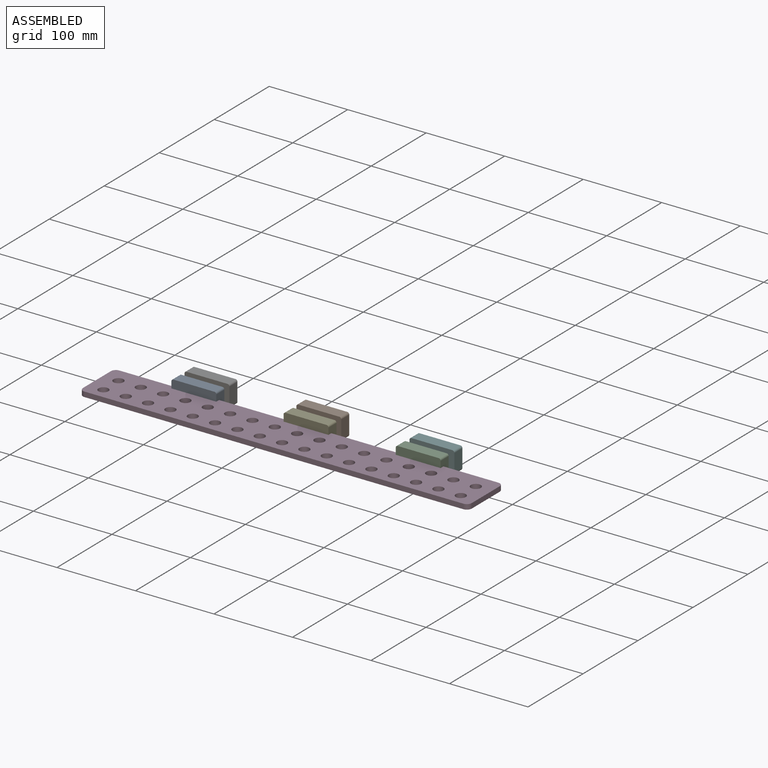
[diagram: assembled view]
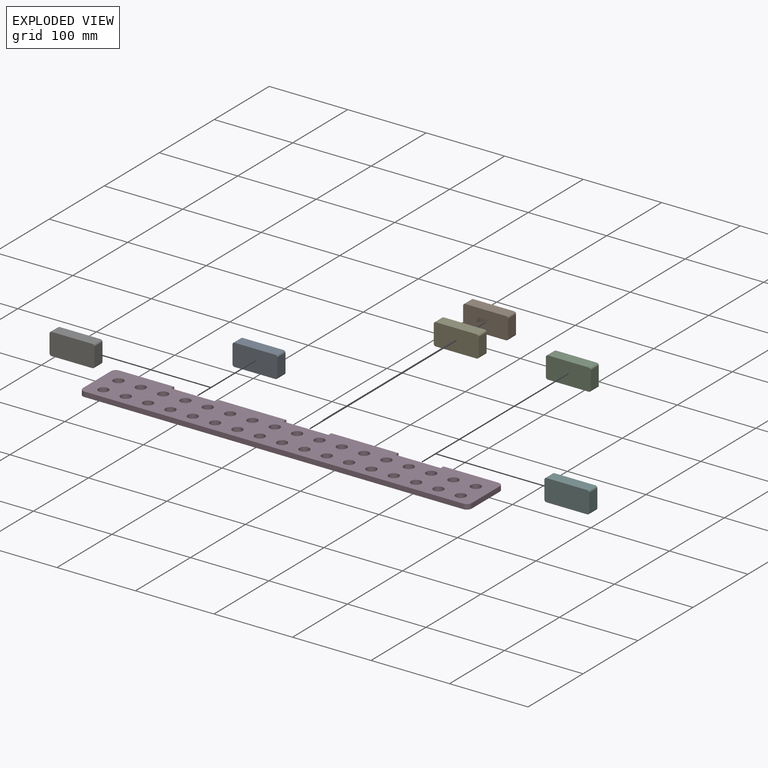
[diagram: exploded view]
GUIDED TOUR — MATED ASSEMBLY (Onshape document fafead87f864a77f9e351ade, AutoMate assembly fafead87f864a77f9e351ade_17c90f678a28b7b4c048f19a_ca02c8fb098e7168a4aec5d7_default)

This assembly has 7 components, labeled P0..P6 below (a component is one placed occurrence of a part; the same part can appear more than once), held together by 3 mates. A mate is a constraint between two components; its type names the relative motion it leaves free:
  PARALLEL — keeps the two listed directions parallel.
Axis/direction vectors are unit vectors and 'through' points are millimeter coordinates, both in the assembly's world frame.

MATES
  1. PARALLEL "Parallel 2": P4 <-> P3, direction (0.000, -1.000, 0.000) through (246.60, -13.50, -27.12) mm
  2. PARALLEL "Parallel 1": P0 <-> P3, direction (0.000, -1.000, 0.000) through (103.72, -13.50, -27.12) mm
  3. PARALLEL "Parallel 3": P2 <-> P3, direction (0.000, -1.000, 0.000) through (389.47, -13.50, -27.12) mm

ASSEMBLY ORDER
  1. P3 — the base component [order verified]
  2. P0 [order verified]
  3. P4 [order verified]
  4. P2 [order verified]
  5. P6 [order verified]
  6. P1 [order verified]
  7. P5 [order verified]
Order-tag legend:
  [order verified] — this step's position reverses a verified removal order: the component was checked to insert without passing through the ones already placed.

Of the 7 components, 7 carry the full construction recipe — the FeatureScript program that regenerates the part's solid from scratch; the rest are supplied as boundary geometry only.
Each toured component is shown spotlighted twice — in the assembled view, then in the exploded view, where a leader line traces a displaced component back to its assembled socket (saturated green if recipe-attached, orange if geometry-only; every other component desaturated gray) — followed by its recipe or geometry summary and the mates that hold it.
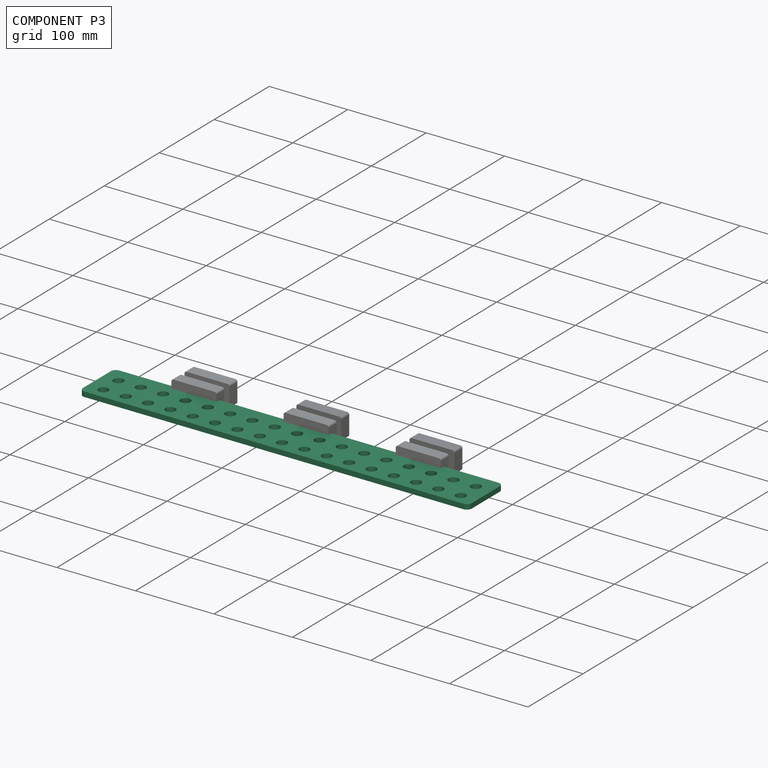
[diagram: component P3 — assembled]
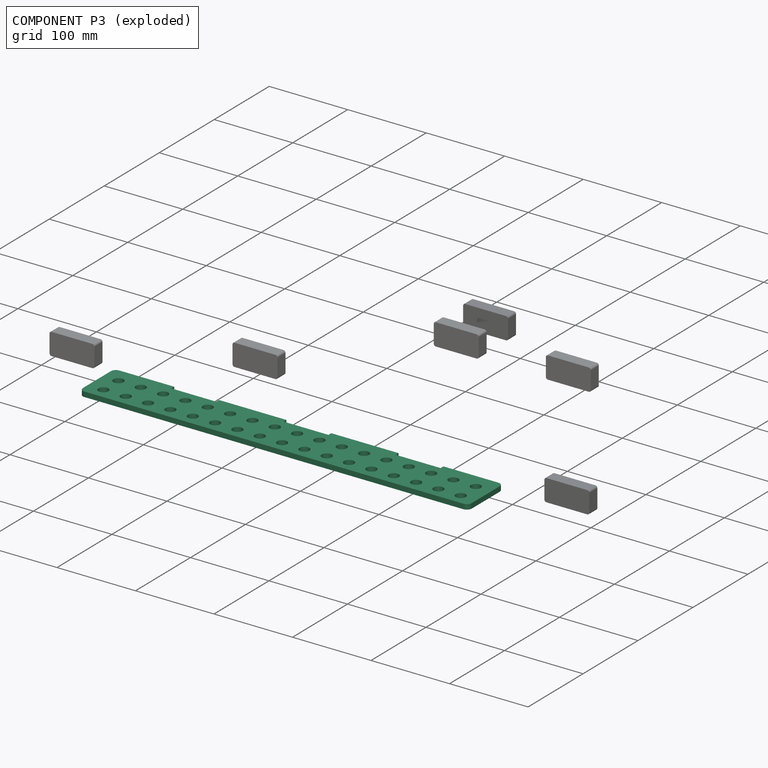
[diagram: component P3 — exploded]
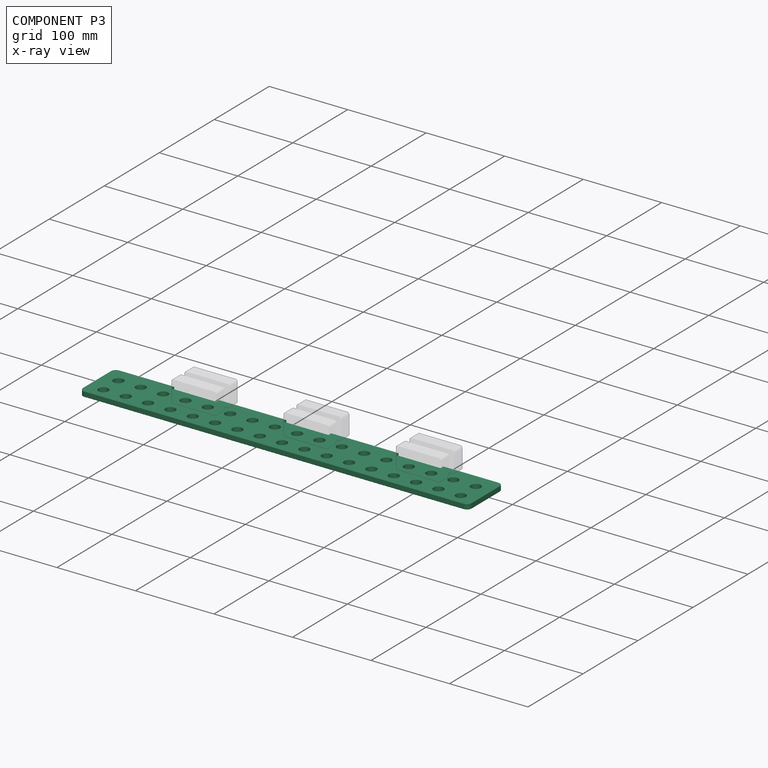
[diagram: component P3 — x-ray view]
COMPONENT P3 — recipe-attached (CADFS 00411531, mesh-verified: the recipe's output STEP matches this component's geometry to below the mesh-comparison resolution (tessellation chordal tolerance ~0.749 mm)).
Held by: PARALLEL mate "Parallel 2" to P4; PARALLEL mate "Parallel 1" to P0; PARALLEL mate "Parallel 3" to P2.
Construction recipe (FeatureScript — the CAD program that rebuilds this solid; sketch coordinates are in the units given by the * unit suffixes, e.g. mm):

FeatureScript 1511;
import(path : "onshape/std/geometry.fs", version : "1511.0");
import(path : "onshape/std/common.fs", version : "1511.0");
const mm = millimeter;
const VERTEX = EntityType.VERTEX;
const EDGE = EntityType.EDGE;
const FACE = EntityType.FACE;
const BODY = EntityType.BODY;
function v(x, y){return vector(x, y);}
function OD(order){return orderDisambiguation(order);}
function OSD(set){return originalSetDisambiguation(set);}
function TD(topology){return topologyDisambiguation(topology);}
function TDD(query){return trueDependencyDisambiguation(query);}
function sQuery(a, b, c) {return sketchEntityQuery(a, b, c);}

annotation { "Feature Type Name" : "Feature", "Feature Type Description" : "" }
export const myFeature = defineFeature(function(context is Context, id is Id, definition is map)
    precondition{}
    {
        {
            var Q0;
            Q0=qCreatedBy(makeId("Top.planeOp"),FACE);
            var sketch = newSketch(context, id + "F0", { "sketchPlane" : qUnion([Q0])});
            skLineSegment(sketch, "E0.bottom", {"start": v(6.35, 0) * mm, "end": v(76.2, 0) * mm});
            skLineSegment(sketch, "E0.top", {"start": v(6.35, -63.5) * mm, "end": v(488.95, -63.5) * mm});
            skLineSegment(sketch, "E0.left", {"start": v(0, -6.35) * mm, "end": v(0, -57.15) * mm});
            skLineSegment(sketch, "E0.right", {"start": v(495.3, -6.35) * mm, "end": v(495.3, -57.15) * mm});
            skCircle(sketch, "E1", {"center": v(20.07, -21.24) * mm, "radius": 6.35 * mm});
            skCircle(sketch, "E2", {"center": v(20.07, -48.59) * mm, "radius": 6.35 * mm});
            skCircle(sketch, "E3.1.0.0", {"center": v(48.51, -48.59) * mm, "radius": 6.35 * mm});
            skCircle(sketch, "E3.1.0.3", {"center": v(48.51, -21.24) * mm, "radius": 6.35 * mm});
            skCircle(sketch, "E3.2.0.0", {"center": v(76.96, -48.59) * mm, "radius": 6.35 * mm});
            skCircle(sketch, "E3.2.0.3", {"center": v(76.96, -21.24) * mm, "radius": 6.35 * mm});
            skCircle(sketch, "E3.3.0.0", {"center": v(105.41, -48.59) * mm, "radius": 6.35 * mm});
            skCircle(sketch, "E3.3.0.3", {"center": v(105.41, -21.24) * mm, "radius": 6.35 * mm});
            skCircle(sketch, "E3.4.0.0", {"center": v(133.86, -48.59) * mm, "radius": 6.35 * mm});
            skCircle(sketch, "E3.4.0.3", {"center": v(133.86, -21.24) * mm, "radius": 6.35 * mm});
            skCircle(sketch, "E3.5.0.0", {"center": v(162.3, -48.59) * mm, "radius": 6.35 * mm});
            skCircle(sketch, "E3.5.0.3", {"center": v(162.3, -21.24) * mm, "radius": 6.35 * mm});
            skCircle(sketch, "E3.6.0.0", {"center": v(190.75, -48.59) * mm, "radius": 6.35 * mm});
            skCircle(sketch, "E3.6.0.3", {"center": v(190.75, -21.24) * mm, "radius": 6.35 * mm});
            skCircle(sketch, "E3.7.0.0", {"center": v(219.2, -48.59) * mm, "radius": 6.35 * mm});
            skCircle(sketch, "E3.7.0.3", {"center": v(219.2, -21.24) * mm, "radius": 6.35 * mm});
            skCircle(sketch, "E3.8.0.0", {"center": v(247.65, -48.59) * mm, "radius": 6.35 * mm});
            skCircle(sketch, "E3.8.0.3", {"center": v(247.65, -21.24) * mm, "radius": 6.35 * mm});
            skCircle(sketch, "E3.9.0.0", {"center": v(276.1, -48.59) * mm, "radius": 6.35 * mm});
            skCircle(sketch, "E3.9.0.3", {"center": v(276.1, -21.24) * mm, "radius": 6.35 * mm});
            skCircle(sketch, "E3.10.0.0", {"center": v(304.55, -48.59) * mm, "radius": 6.35 * mm});
            skCircle(sketch, "E3.10.0.3", {"center": v(304.55, -21.24) * mm, "radius": 6.35 * mm});
            skCircle(sketch, "E3.11.0.0", {"center": v(333, -48.59) * mm, "radius": 6.35 * mm});
            skCircle(sketch, "E3.11.0.3", {"center": v(333, -21.24) * mm, "radius": 6.35 * mm});
            skCircle(sketch, "E3.12.0.0", {"center": v(361.44, -48.59) * mm, "radius": 6.35 * mm});
            skCircle(sketch, "E3.12.0.3", {"center": v(361.44, -21.24) * mm, "radius": 6.35 * mm});
            skCircle(sketch, "E3.13.0.0", {"center": v(389.9, -48.59) * mm, "radius": 6.35 * mm});
            skCircle(sketch, "E3.13.0.3", {"center": v(389.9, -21.24) * mm, "radius": 6.35 * mm});
            skCircle(sketch, "E3.14.0.0", {"center": v(418.34, -48.59) * mm, "radius": 6.35 * mm});
            skCircle(sketch, "E3.14.0.3", {"center": v(418.34, -21.24) * mm, "radius": 6.35 * mm});
            skCircle(sketch, "E3.15.0.0", {"center": v(446.79, -48.59) * mm, "radius": 6.35 * mm});
            skCircle(sketch, "E3.15.0.3", {"center": v(446.79, -21.24) * mm, "radius": 6.35 * mm});
            skCircle(sketch, "E3.16.0.0", {"center": v(475.23, -48.59) * mm, "radius": 6.35 * mm});
            skCircle(sketch, "E3.16.0.3", {"center": v(475.23, -21.24) * mm, "radius": 6.35 * mm});
            skLineSegment(sketch, "E3.direction1", {"start": v(20.07, -48.59) * mm, "end": v(48.51, -48.59) * mm, "construction": true});
            skLineSegment(sketch, "E4", {"start": v(247.65, 0) * mm, "end": v(247.65, -63.5) * mm, "construction": true});
            skPoint(sketch, "E5.visualSharp", {"position": v(0, 0) * mm});
            skArc(sketch, "E5.filletArc", {"start": v(6.35, 0) * mm, "mid": v(1.86, -1.86) * mm, "end": v(0, -6.35) * mm});
            skPoint(sketch, "E6.visualSharp", {"position": v(0, -63.5) * mm});
            skArc(sketch, "E6.filletArc", {"start": v(0, -57.15) * mm, "mid": v(1.86, -61.64) * mm, "end": v(6.35, -63.5) * mm});
            skPoint(sketch, "E7.visualSharp", {"position": v(495.3, -63.5) * mm});
            skArc(sketch, "E7.filletArc", {"start": v(488.95, -63.5) * mm, "mid": v(493.44, -61.64) * mm, "end": v(495.3, -57.15) * mm});
            skPoint(sketch, "E8.visualSharp", {"position": v(495.3, 0) * mm});
            skArc(sketch, "E8.filletArc", {"start": v(495.3, -6.35) * mm, "mid": v(493.44, -1.86) * mm, "end": v(488.95, 0) * mm});
            skLineSegment(sketch, "E9", {"start": v(123.83, 0) * mm, "end": v(123.83, -63.5) * mm, "construction": true});
            skLineSegment(sketch, "E10.top", {"start": v(76.2, -5.08) * mm, "end": v(133.35, -5.08) * mm});
            skLineSegment(sketch, "E10.left", {"start": v(76.2, 0) * mm, "end": v(76.2, -5.08) * mm});
            skLineSegment(sketch, "E10.right", {"start": v(133.35, 0) * mm, "end": v(133.35, -5.08) * mm});
            skLineSegment(sketch, "E11.top", {"start": v(219.07, -5.08) * mm, "end": v(276.23, -5.08) * mm});
            skLineSegment(sketch, "E11.left", {"start": v(219.07, 0) * mm, "end": v(219.07, -5.08) * mm});
            skLineSegment(sketch, "E11.right", {"start": v(276.23, 0) * mm, "end": v(276.23, -5.08) * mm});
            skLineSegment(sketch, "E12.trimOffspring", {"start": v(133.35, 0) * mm, "end": v(219.07, 0) * mm});
            skLineSegment(sketch, "E13.trimOffspring", {"start": v(276.23, 0) * mm, "end": v(361.95, 0) * mm});
            skLineSegment(sketch, "E14.MirrorCS", {"start": v(361.95, 0) * mm, "end": v(361.95, -5.08) * mm});
            skLineSegment(sketch, "E15.MirrorCS", {"start": v(419.1, 0) * mm, "end": v(419.1, -5.08) * mm});
            skLineSegment(sketch, "E16.MirrorCS", {"start": v(419.1, -5.08) * mm, "end": v(361.95, -5.08) * mm});
            skLineSegment(sketch, "E17.trimOffspring", {"start": v(419.1, 0) * mm, "end": v(488.95, 0) * mm});
            skSolve(sketch);
        }
        {
            var Q0;
            Q0=makeQuery(id+"F0.imprint","IMPRINT",FACE,{"disambiguationData":[TD([[makeQuery(id+"F0.imprint","IMPRINT",EDGE,{"derivedFrom":sQuery(id+"F0.wireOp",EDGE,"E0.bottom")}),-1.0]])]});
            extrude(context, id + "F1", {"entities" : qUnion([Q0]), "depth" : 6.35 * mm});
        }
    });
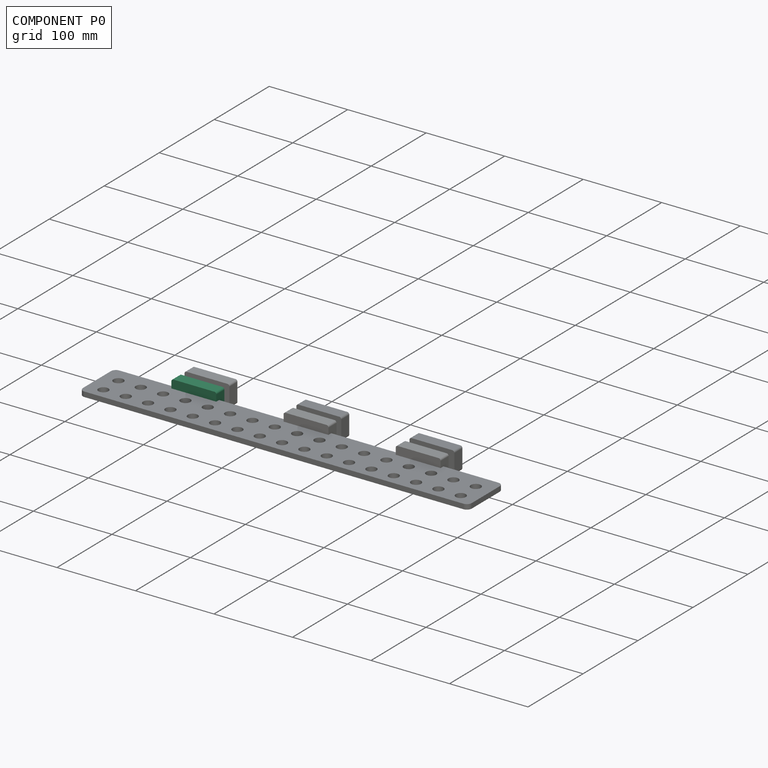
[diagram: component P0 — assembled]
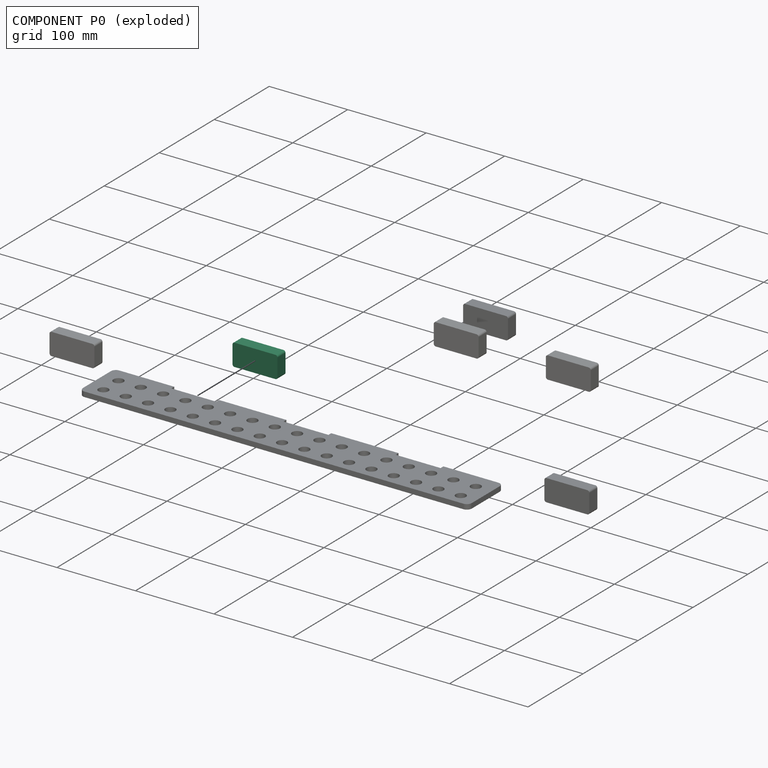
[diagram: component P0 — exploded]
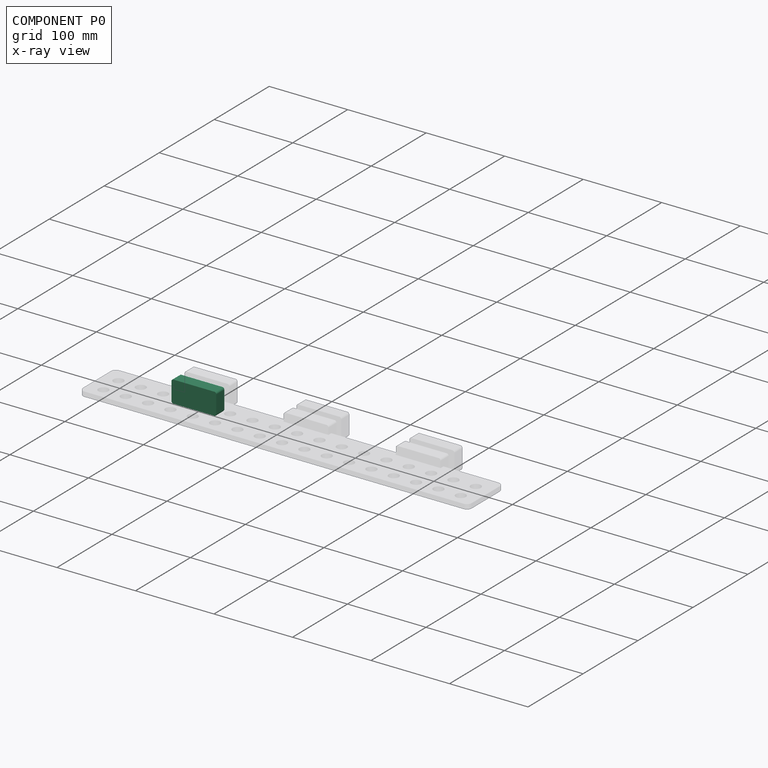
[diagram: component P0 — x-ray view]
COMPONENT P0 — recipe-attached (CADFS 00411624, mesh-verified: the recipe's output STEP matches this component's geometry to below the mesh-comparison resolution (tessellation chordal tolerance ~0.0979 mm)).
Held by: PARALLEL mate "Parallel 1" to P3.
Construction recipe (FeatureScript — the CAD program that rebuilds this solid; sketch coordinates are in the units given by the * unit suffixes, e.g. mm):

FeatureScript 1511;
import(path : "onshape/std/geometry.fs", version : "1511.0");
import(path : "onshape/std/common.fs", version : "1511.0");
const mm = millimeter;
const VERTEX = EntityType.VERTEX;
const EDGE = EntityType.EDGE;
const FACE = EntityType.FACE;
const BODY = EntityType.BODY;
function v(x, y){return vector(x, y);}
function OD(order){return orderDisambiguation(order);}
function OSD(set){return originalSetDisambiguation(set);}
function TD(topology){return topologyDisambiguation(topology);}
function TDD(query){return trueDependencyDisambiguation(query);}
function sQuery(a, b, c) {return sketchEntityQuery(a, b, c);}

annotation { "Feature Type Name" : "Feature", "Feature Type Description" : "" }
export const myFeature = defineFeature(function(context is Context, id is Id, definition is map)
    precondition{}
    {
        {
            var Q0;
            Q0=qCreatedBy(makeId("Front.planeOp"),FACE);
            var sketch = newSketch(context, id + "F0", { "sketchPlane" : qUnion([Q0])});
            skLineSegment(sketch, "E0.bottom", {"start": v(2.54, 0) * mm, "end": v(54.6, 0) * mm});
            skLineSegment(sketch, "E0.top", {"start": v(2.54, -27.94) * mm, "end": v(54.6, -27.94) * mm});
            skLineSegment(sketch, "E0.left", {"start": v(0, -2.54) * mm, "end": v(0, -25.4) * mm});
            skLineSegment(sketch, "E0.right", {"start": v(57.15, -2.54) * mm, "end": v(57.15, -25.4) * mm});
            skLineSegment(sketch, "E1.bottom", {"start": v(6.35, -3) * mm, "end": v(50.8, -3) * mm});
            skLineSegment(sketch, "E1.top", {"start": v(6.35, -25.02) * mm, "end": v(50.8, -25.02) * mm});
            skLineSegment(sketch, "E1.left", {"start": v(5.08, -4.27) * mm, "end": v(5.08, -23.75) * mm});
            skLineSegment(sketch, "E1.right", {"start": v(52.07, -4.27) * mm, "end": v(52.07, -23.75) * mm});
            skPoint(sketch, "E2.visualSharp", {"position": v(5.08, -3) * mm});
            skArc(sketch, "E2.filletArc", {"start": v(6.35, -3) * mm, "mid": v(5.45, -3.37) * mm, "end": v(5.08, -4.27) * mm});
            skPoint(sketch, "E3.visualSharp", {"position": v(52.07, -3) * mm});
            skArc(sketch, "E3.filletArc", {"start": v(52.07, -4.27) * mm, "mid": v(51.7, -3.37) * mm, "end": v(50.8, -3) * mm});
            skPoint(sketch, "E4.visualSharp", {"position": v(52.07, -25.02) * mm});
            skArc(sketch, "E4.filletArc", {"start": v(50.8, -25.02) * mm, "mid": v(51.7, -24.65) * mm, "end": v(52.07, -23.75) * mm});
            skPoint(sketch, "E5.visualSharp", {"position": v(5.08, -25.02) * mm});
            skArc(sketch, "E5.filletArc", {"start": v(5.08, -23.75) * mm, "mid": v(5.45, -24.65) * mm, "end": v(6.35, -25.02) * mm});
            skPoint(sketch, "E6.visualSharp", {"position": v(0, 0) * mm});
            skArc(sketch, "E6.filletArc", {"start": v(2.54, 0) * mm, "mid": v(0.74, -0.74) * mm, "end": v(0, -2.54) * mm});
            skPoint(sketch, "E7.visualSharp", {"position": v(0, -27.94) * mm});
            skArc(sketch, "E7.filletArc", {"start": v(0, -25.4) * mm, "mid": v(0.74, -27.2) * mm, "end": v(2.54, -27.94) * mm});
            skPoint(sketch, "E8.visualSharp", {"position": v(57.15, -27.94) * mm});
            skArc(sketch, "E8.filletArc", {"start": v(54.6, -27.94) * mm, "mid": v(56.4, -27.2) * mm, "end": v(57.15, -25.4) * mm});
            skPoint(sketch, "E9.visualSharp", {"position": v(57.15, 0) * mm});
            skArc(sketch, "E9.filletArc", {"start": v(57.15, -2.54) * mm, "mid": v(56.4, -0.74) * mm, "end": v(54.6, 0) * mm});
            skSolve(sketch);
        }
        {
            var Q0;
            Q0=makeQuery(id+"F0.imprint","IMPRINT",FACE,{"disambiguationData":[TD([[makeQuery(id+"F0.imprint","IMPRINT",EDGE,{"derivedFrom":sQuery(id+"F0.wireOp",EDGE,"E0.bottom")}),-1.0]])]});
            extrude(context, id + "F1", {"entities" : qUnion([Q0]), "depth" : 11.8 * mm});
        }
        {
            var Q0;
            Q0=makeQuery(id+"F1.opExtrude","CAP_FACE",FACE,{"disambiguationData":[OSD([sQuery(id+"F0.wireOp",EDGE,"E0.bottom"),sQuery(id+"F0.wireOp",EDGE,"E0.top"),sQuery(id+"F0.wireOp",EDGE,"E0.left"),sQuery(id+"F0.wireOp",EDGE,"E0.right"),sQuery(id+"F0.wireOp",EDGE,"E1.bottom"),sQuery(id+"F0.wireOp",EDGE,"E1.top"),sQuery(id+"F0.wireOp",EDGE,"E1.left"),sQuery(id+"F0.wireOp",EDGE,"E1.right"),sQuery(id+"F0.wireOp",EDGE,"E2.filletArc"),sQuery(id+"F0.wireOp",EDGE,"E3.filletArc"),sQuery(id+"F0.wireOp",EDGE,"E4.filletArc"),sQuery(id+"F0.wireOp",EDGE,"E5.filletArc"),sQuery(id+"F0.wireOp",EDGE,"E6.filletArc"),sQuery(id+"F0.wireOp",EDGE,"E7.filletArc"),sQuery(id+"F0.wireOp",EDGE,"E8.filletArc"),sQuery(id+"F0.wireOp",EDGE,"E9.filletArc")])],"isStart":true});
            var sketch = newSketch(context, id + "F2", { "sketchPlane" : qUnion([Q0])});
            skLineSegment(sketch, "E10.bottom", {"start": v(-2.54, 0) * mm, "end": v(-54.6, 0) * mm});
            skLineSegment(sketch, "E10.top", {"start": v(-2.54, -27.94) * mm, "end": v(-54.6, -27.94) * mm});
            skLineSegment(sketch, "E10.left", {"start": v(0, -2.54) * mm, "end": v(0, -25.4) * mm});
            skLineSegment(sketch, "E10.right", {"start": v(-57.15, -2.54) * mm, "end": v(-57.15, -25.4) * mm});
            skPoint(sketch, "E11.visualSharp", {"position": v(0, 0) * mm});
            skArc(sketch, "E11.filletArc", {"start": v(0, -2.54) * mm, "mid": v(-0.74, -0.74) * mm, "end": v(-2.54, 0) * mm});
            skPoint(sketch, "E12.visualSharp", {"position": v(-57.15, 0) * mm});
            skArc(sketch, "E12.filletArc", {"start": v(-54.6, 0) * mm, "mid": v(-56.4, -0.74) * mm, "end": v(-57.15, -2.54) * mm});
            skPoint(sketch, "E13.visualSharp", {"position": v(-57.15, -27.94) * mm});
            skArc(sketch, "E13.filletArc", {"start": v(-57.15, -25.4) * mm, "mid": v(-56.4, -27.2) * mm, "end": v(-54.6, -27.94) * mm});
            skPoint(sketch, "E14.visualSharp", {"position": v(0, -27.94) * mm});
            skArc(sketch, "E14.filletArc", {"start": v(-2.54, -27.94) * mm, "mid": v(-0.74, -27.2) * mm, "end": v(0, -25.4) * mm});
            skSolve(sketch);
        }
        {
            var Q0;
            Q0 = qSketchRegion(id + "F2", true);
            extrude(context, id + "F3", {"entities" : qUnion([Q0]), "operationType" : NewBodyOperationType.ADD, "depth" : 1.42 * mm});
        }
        {
            var Q0;
            Q0=makeQuery(id+"F1.opExtrude","CAP_FACE",FACE,{"disambiguationData":[OSD([sQuery(id+"F0.wireOp",EDGE,"E0.bottom"),sQuery(id+"F0.wireOp",EDGE,"E0.top"),sQuery(id+"F0.wireOp",EDGE,"E0.left"),sQuery(id+"F0.wireOp",EDGE,"E0.right"),sQuery(id+"F0.wireOp",EDGE,"E1.bottom"),sQuery(id+"F0.wireOp",EDGE,"E1.top"),sQuery(id+"F0.wireOp",EDGE,"E1.left"),sQuery(id+"F0.wireOp",EDGE,"E1.right"),sQuery(id+"F0.wireOp",EDGE,"E2.filletArc"),sQuery(id+"F0.wireOp",EDGE,"E3.filletArc"),sQuery(id+"F0.wireOp",EDGE,"E4.filletArc"),sQuery(id+"F0.wireOp",EDGE,"E5.filletArc"),sQuery(id+"F0.wireOp",EDGE,"E6.filletArc"),sQuery(id+"F0.wireOp",EDGE,"E7.filletArc"),sQuery(id+"F0.wireOp",EDGE,"E8.filletArc"),sQuery(id+"F0.wireOp",EDGE,"E9.filletArc")])],"isStart":false});
            var sketch = newSketch(context, id + "F4", { "sketchPlane" : qUnion([Q0])});
            skLineSegment(sketch, "E15.bottom", {"start": v(2.54, 0) * mm, "end": v(54.6, 0) * mm});
            skLineSegment(sketch, "E15.top", {"start": v(2.54, -27.94) * mm, "end": v(54.6, -27.94) * mm});
            skLineSegment(sketch, "E15.left", {"start": v(0, -2.54) * mm, "end": v(0, -25.4) * mm});
            skLineSegment(sketch, "E15.right", {"start": v(57.15, -2.54) * mm, "end": v(57.15, -25.4) * mm});
            skPoint(sketch, "E16.visualSharp", {"position": v(0, 0) * mm});
            skArc(sketch, "E16.filletArc", {"start": v(2.54, 0) * mm, "mid": v(0.74, -0.74) * mm, "end": v(0, -2.54) * mm});
            skPoint(sketch, "E17.visualSharp", {"position": v(57.15, 0) * mm});
            skArc(sketch, "E17.filletArc", {"start": v(57.15, -2.54) * mm, "mid": v(56.4, -0.74) * mm, "end": v(54.6, 0) * mm});
            skPoint(sketch, "E18.visualSharp", {"position": v(57.15, -27.94) * mm});
            skArc(sketch, "E18.filletArc", {"start": v(54.6, -27.94) * mm, "mid": v(56.4, -27.2) * mm, "end": v(57.15, -25.4) * mm});
            skPoint(sketch, "E19.visualSharp", {"position": v(0, -27.94) * mm});
            skArc(sketch, "E19.filletArc", {"start": v(0, -25.4) * mm, "mid": v(0.74, -27.2) * mm, "end": v(2.54, -27.94) * mm});
            skSolve(sketch);
        }
        {
            var Q0;
            Q0 = qSketchRegion(id + "F4", true);
            extrude(context, id + "F5", {"entities" : qUnion([Q0]), "operationType" : NewBodyOperationType.ADD, "depth" : 1.42 * mm});
        }
    });
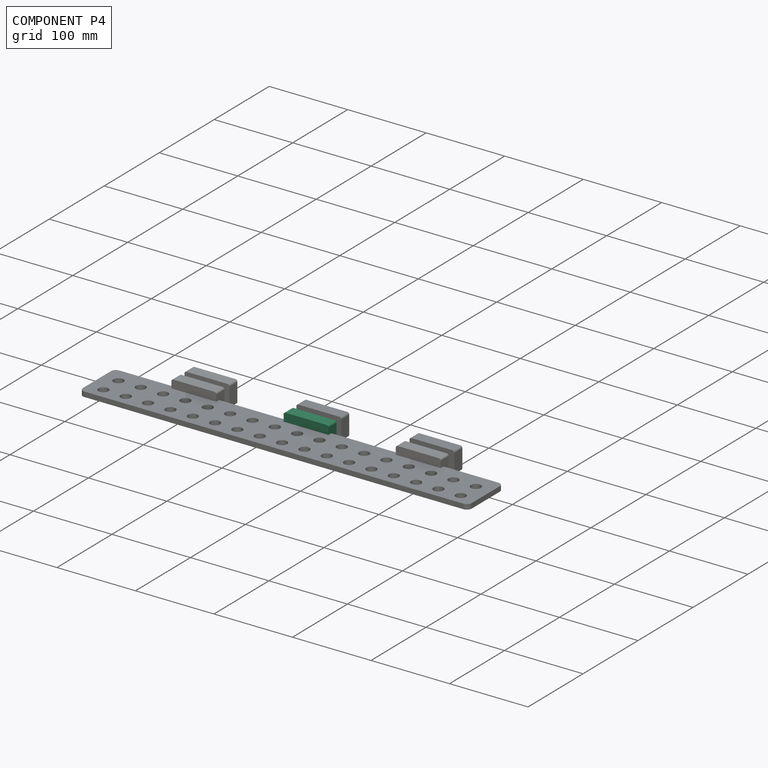
[diagram: component P4 — assembled]
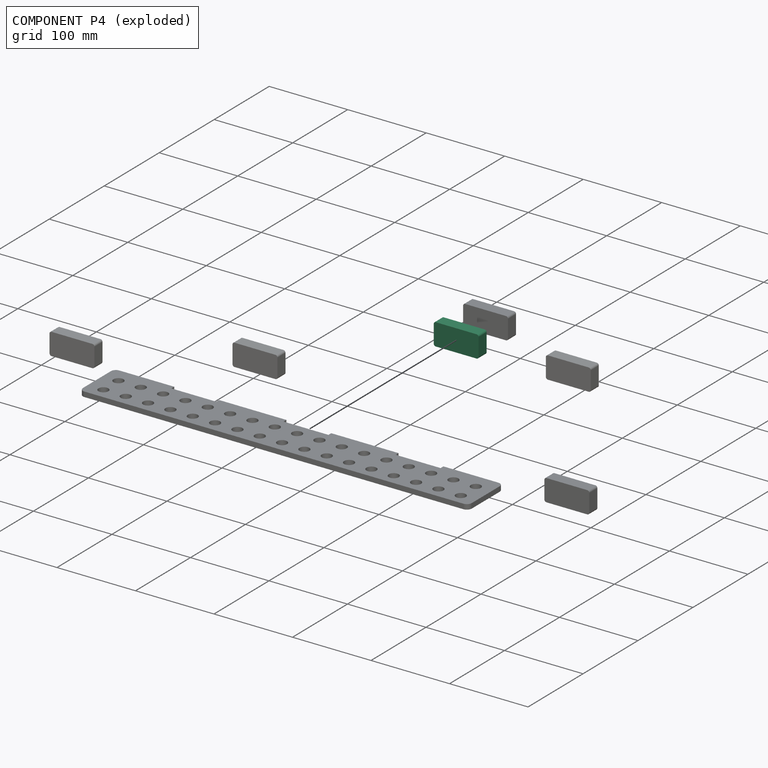
[diagram: component P4 — exploded]
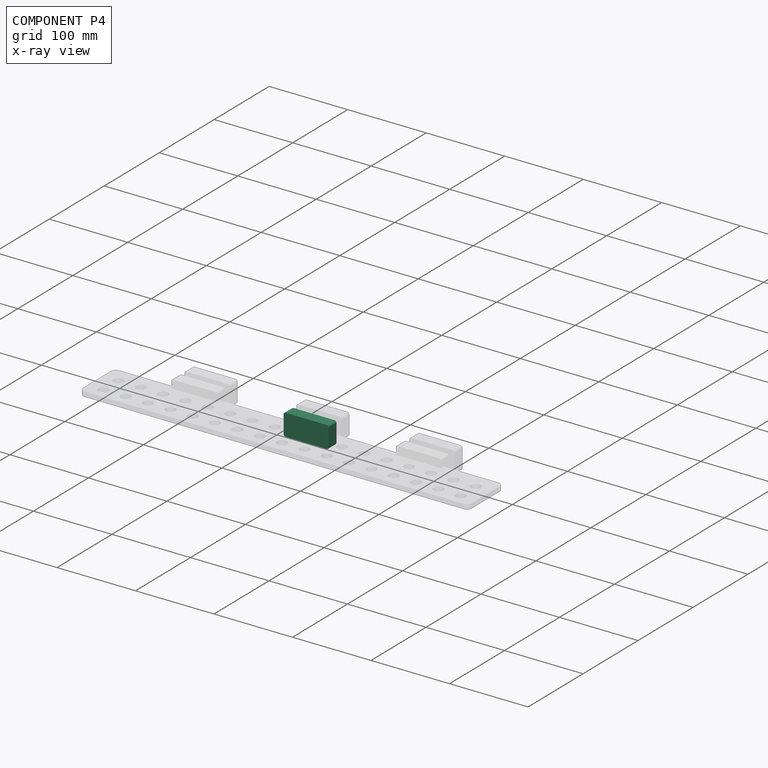
[diagram: component P4 — x-ray view]
COMPONENT P4 — same part as P0 (CADFS 00411624); its construction recipe is shown at P0.
Held by: PARALLEL mate "Parallel 2" to P3.
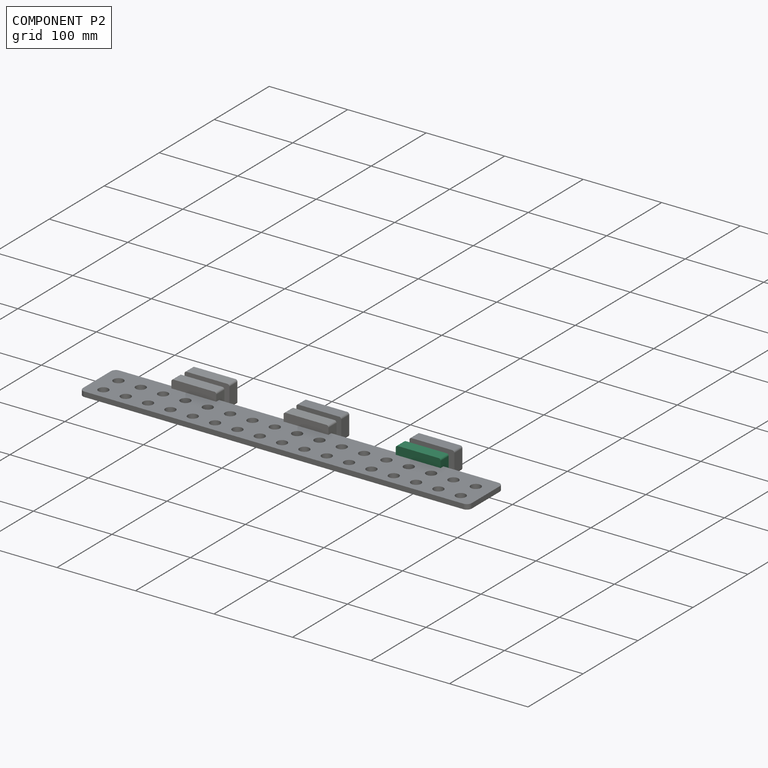
[diagram: component P2 — assembled]
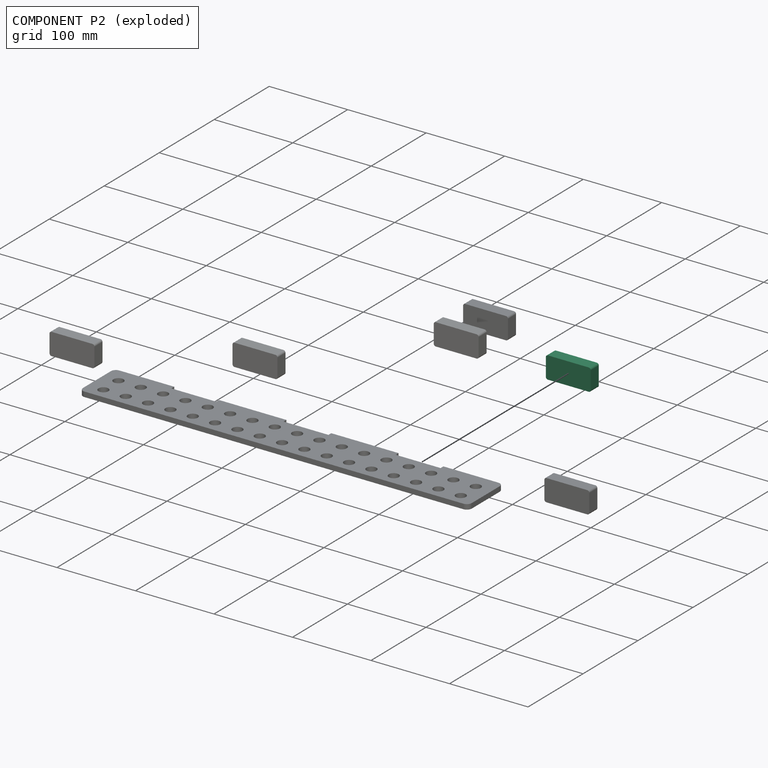
[diagram: component P2 — exploded]
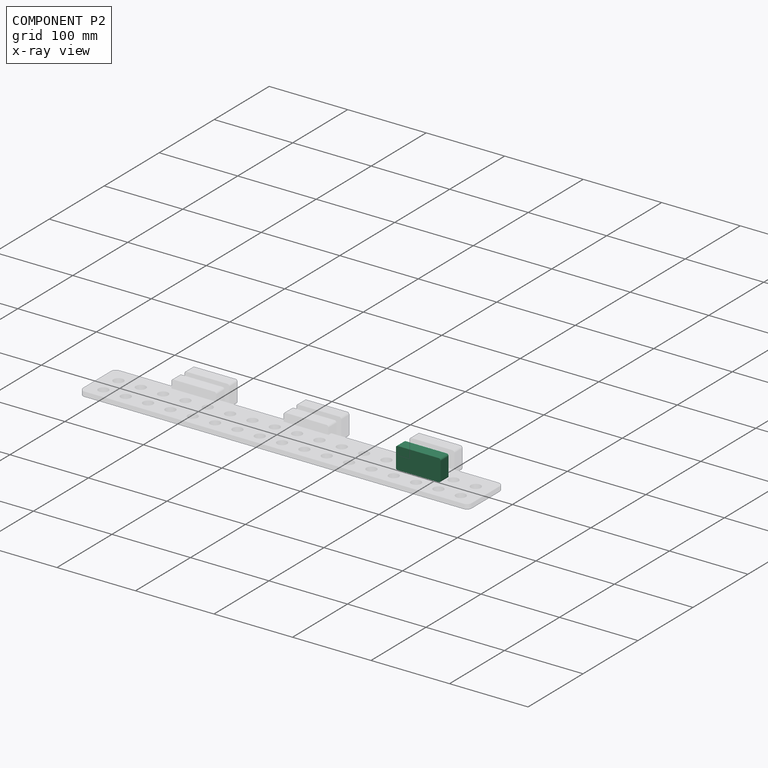
[diagram: component P2 — x-ray view]
COMPONENT P2 — same part as P0 (CADFS 00411624); its construction recipe is shown at P0.
Held by: PARALLEL mate "Parallel 3" to P3.
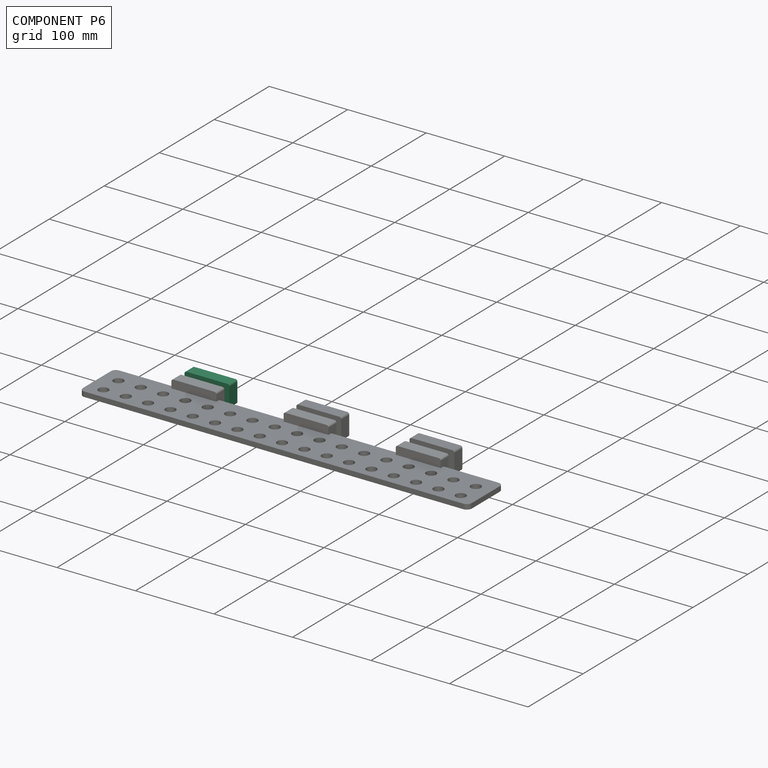
[diagram: component P6 — assembled]
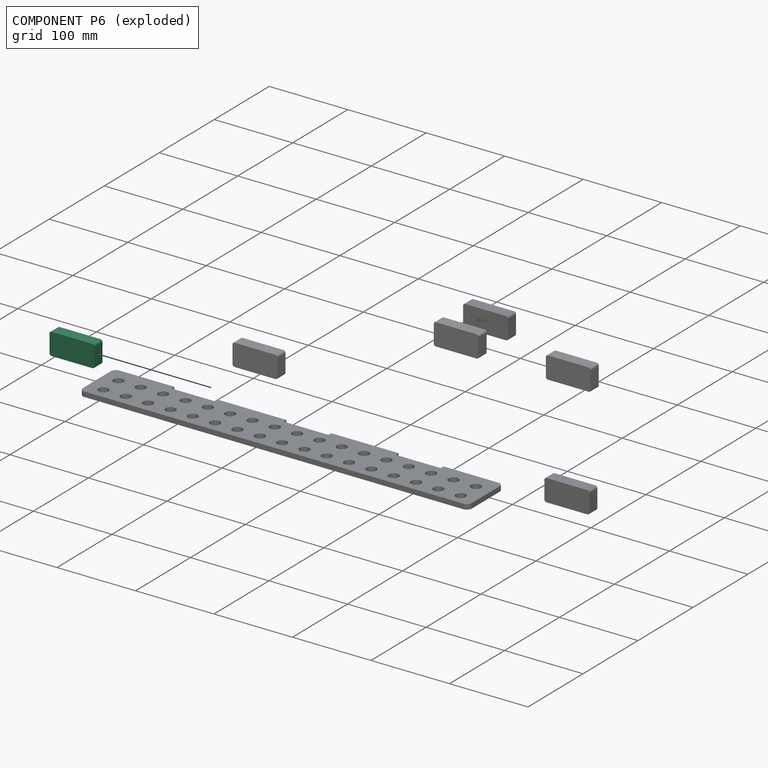
[diagram: component P6 — exploded]
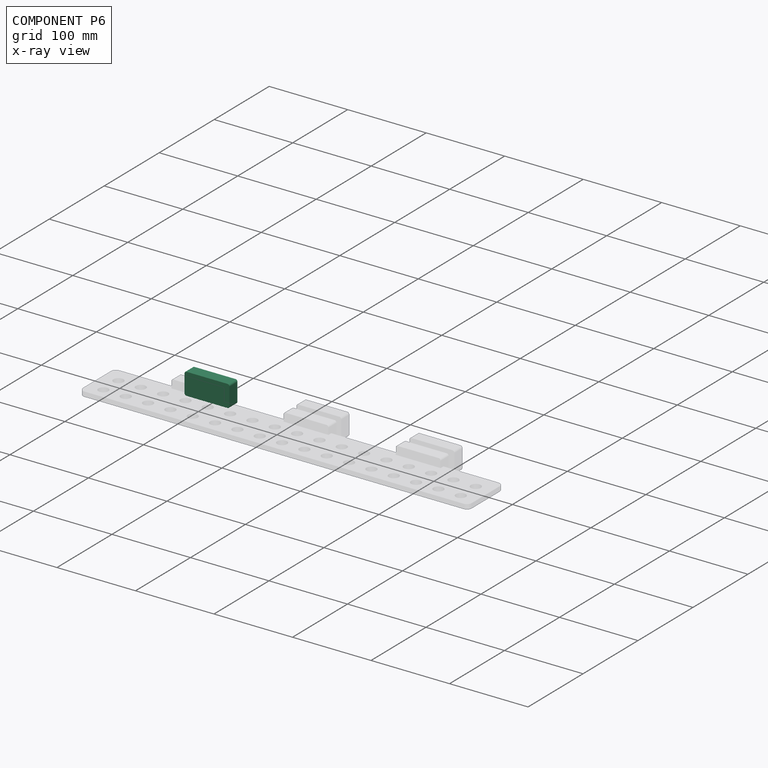
[diagram: component P6 — x-ray view]
COMPONENT P6 — same part as P0 (CADFS 00411624); its construction recipe is shown at P0.
Held by: no mates (free).
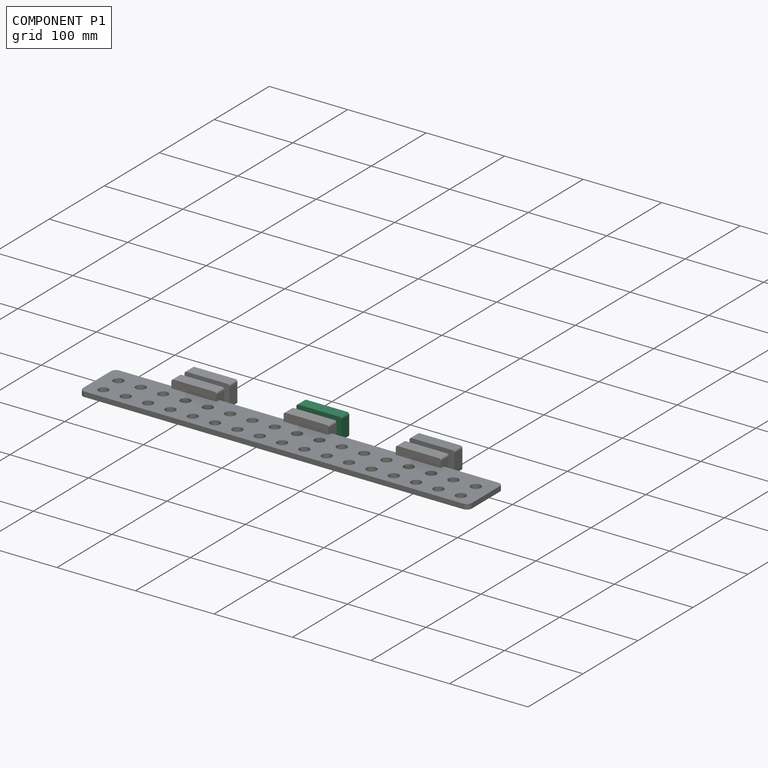
[diagram: component P1 — assembled]
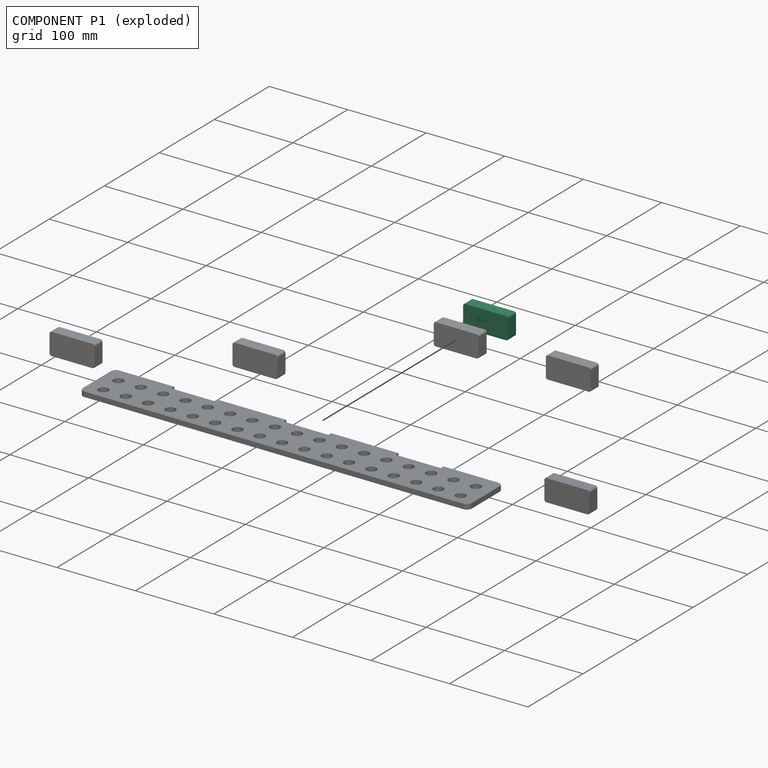
[diagram: component P1 — exploded]
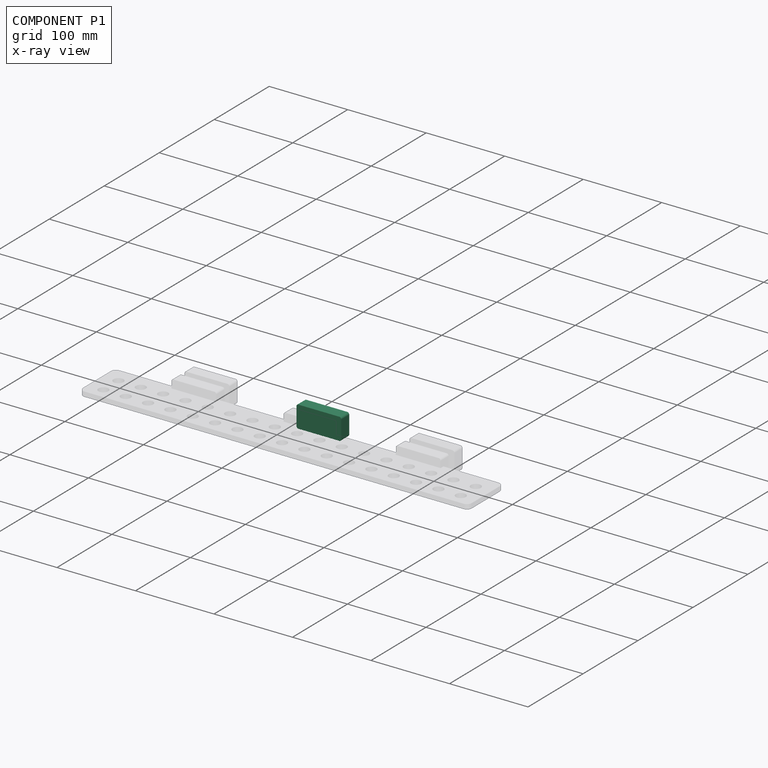
[diagram: component P1 — x-ray view]
COMPONENT P1 — same part as P0 (CADFS 00411624); its construction recipe is shown at P0.
Held by: no mates (free).
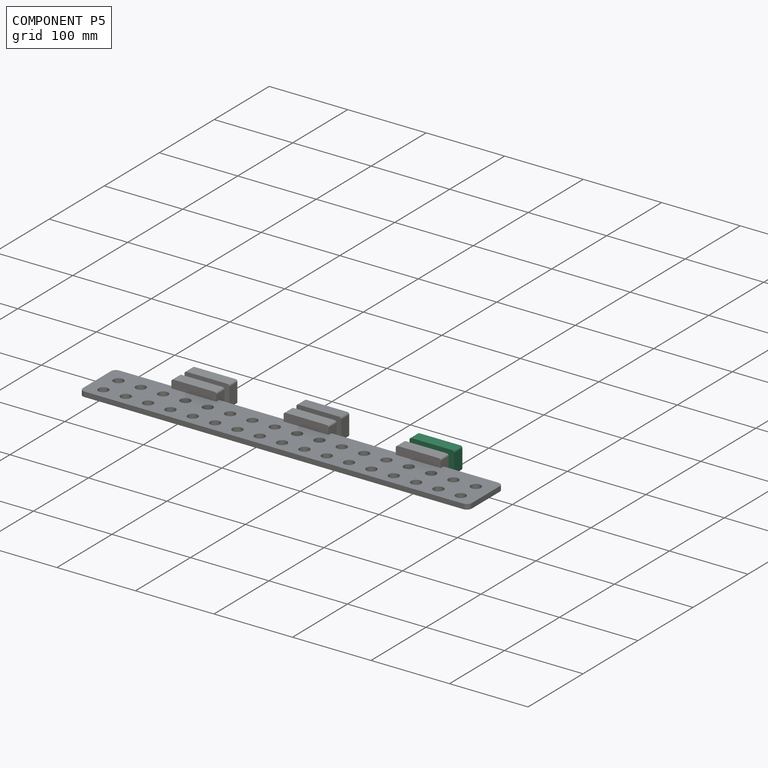
[diagram: component P5 — assembled]
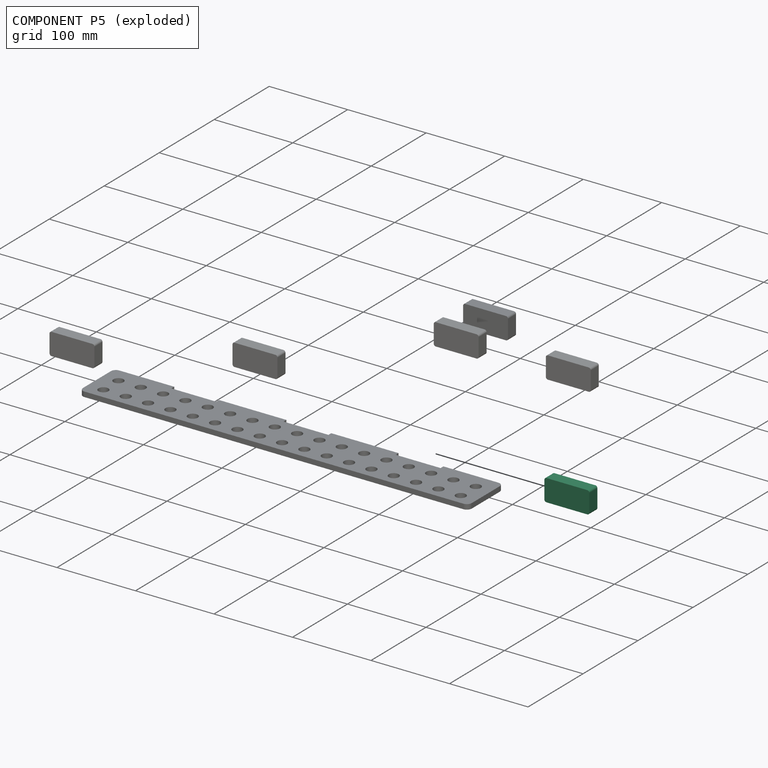
[diagram: component P5 — exploded]
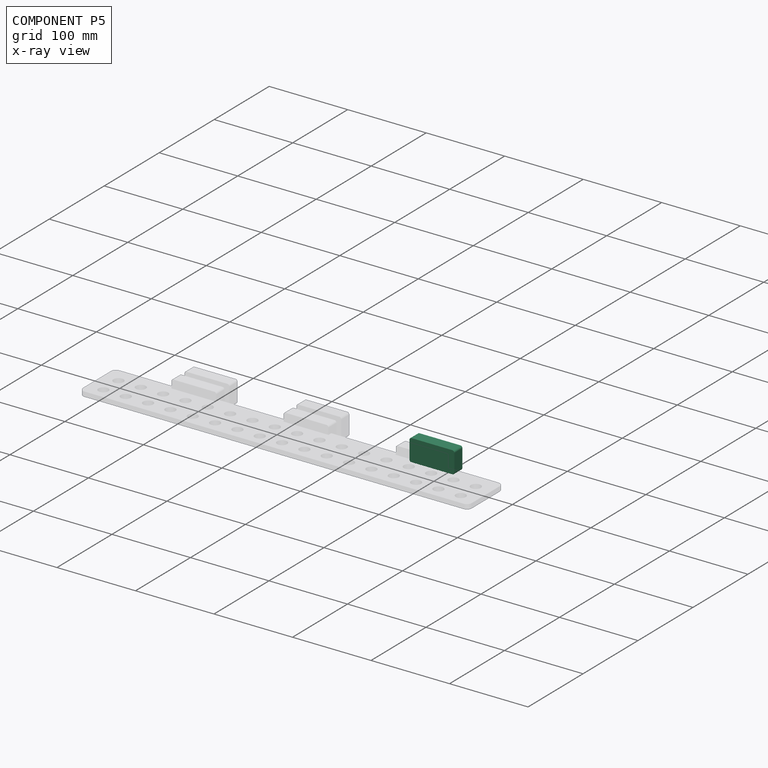
[diagram: component P5 — x-ray view]
COMPONENT P5 — same part as P0 (CADFS 00411624); its construction recipe is shown at P0.
Held by: no mates (free).
PROVENANCE & LICENSES
Assembly (occurrences, transforms, mates, per-part STEP geometry): AutoMate dataset, Zenodo record 7776208, CC0.
Construction recipes: CADFS (HuggingFace VladPyatov/CADFS, CC-BY-4.0, layered over the ABC dataset), FeatureScript reconstruction programs keyed by ABC model id.
Join: ABC meta listings map ABC model id -> Onshape documentId; within a shared document, parts are matched by geometric signature (bounding-box dims + volume at 0.1% relative tolerance, exact B-rep face/solid counts).
Verification: 7 of this assembly's 7 components carry a recipe attachment, and every attachment is mesh-verified: the CADFS STEP and the AutoMate member STEP were compared as meshes in their shared local frame (symmetric sampled-point-to-mesh distance); worst across the 7 attachments: below the mesh-comparison resolution (tessellation chordal tolerance ~0.749 mm) on a 499 mm part.
Renders: orthographic iso camera (az 35 / el 25); the floor grid conveys scale (grid pitch printed in each image; no ruler). In the exploded view each component is displaced by its stored offset vector: the offsets alone carry the explosion direction (mate normal/axis signs are not orientation cues and do not encode it), and separation distances are assigned per mate-chain, not proportionally to assembly-order depth.
